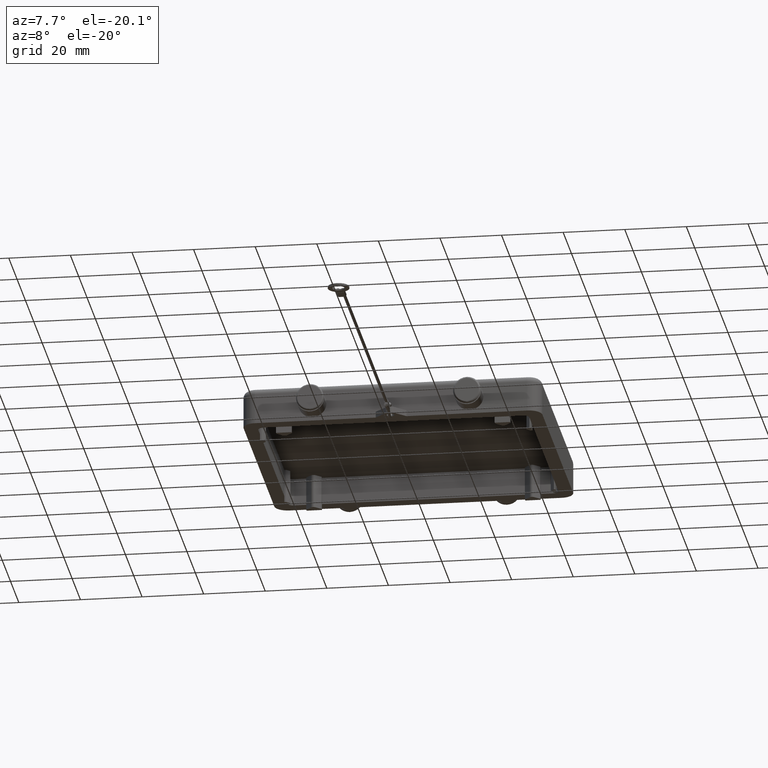
[diagram: clean part render]
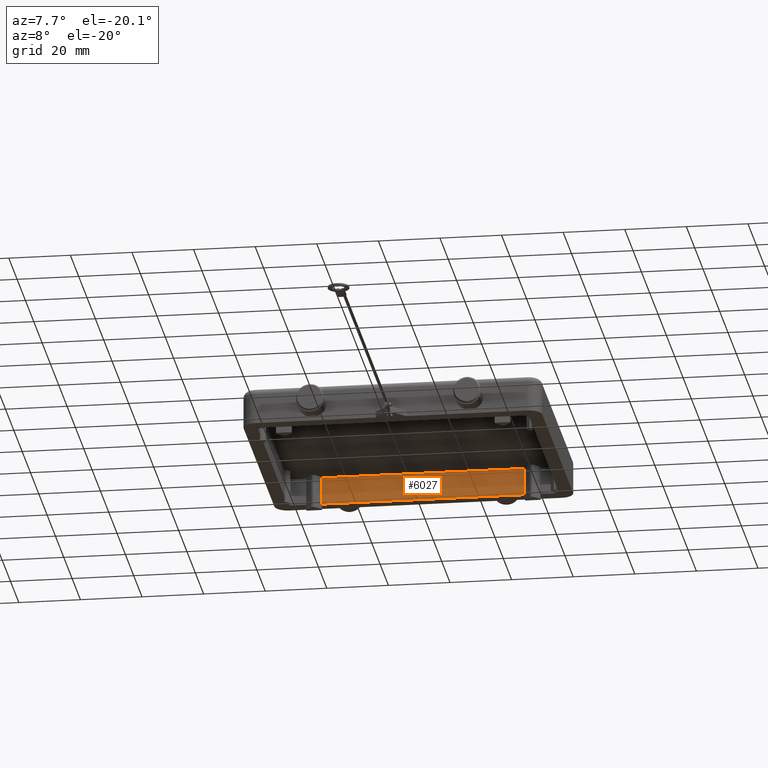
[diagram: same view with one face highlighted and labeled with its STEP entity id]
A machine part, auxiliary view. The second image highlights one B-rep face of the part: STEP entity #6027.
In plain terms, the highlighted planar face has unit normal (0, 1, 0).
Its self-contained STEP definition (entity closure, byte-faithful):
#4664=CARTESIAN_POINT('',(-33.000000000000007,36.750000000000000,9.0));
#4665=VERTEX_POINT('',#4664);
#4672=CARTESIAN_POINT('',(33.000000000000007,36.750000000000000,9.0));
#4673=VERTEX_POINT('',#4672);
#4674=CARTESIAN_POINT('',(-33.000000000000007,36.750000000000000,9.0));
#4675=DIRECTION('',(1.0,0.0,0.0));
#4676=VECTOR('',#4675,66.000000000000014);
#4677=LINE('',#4674,#4676);
#4678=EDGE_CURVE('',#4665,#4673,#4677,.T.);
#5829=CARTESIAN_POINT('',(-33.000000000000007,36.750000000000000,0.0));
#5830=VERTEX_POINT('',#5829);
#5979=CARTESIAN_POINT('',(-33.000000000000007,36.750000000000000,9.0));
#5980=DIRECTION('',(0.0,0.0,-1.0));
#5981=VECTOR('',#5980,9.0);
#5982=LINE('',#5979,#5981);
#5983=EDGE_CURVE('',#4665,#5830,#5982,.T.);
#6004=CARTESIAN_POINT('',(-42.000000000000014,36.749999999999986,0.0));
#6005=DIRECTION('',(0.0,1.0,0.0));
#6006=DIRECTION('',(0.0,0.0,1.0));
#6007=AXIS2_PLACEMENT_3D('',#6004,#6005,#6006);
#6008=PLANE('',#6007);
#6009=ORIENTED_EDGE('',*,*,#5983,.T.);
#6010=CARTESIAN_POINT('',(33.000000000000007,36.750000000000000,0.0));
#6011=VERTEX_POINT('',#6010);
#6012=CARTESIAN_POINT('',(33.000000000000007,36.750000000000000,0.0));
#6013=DIRECTION('',(-1.0,0.0,0.0));
#6014=VECTOR('',#6013,66.000000000000014);
#6015=LINE('',#6012,#6014);
#6016=EDGE_CURVE('',#6011,#5830,#6015,.T.);
#6017=ORIENTED_EDGE('',*,*,#6016,.F.);
#6018=CARTESIAN_POINT('',(33.000000000000007,36.750000000000000,0.0));
#6019=DIRECTION('',(0.0,0.0,1.0));
#6020=VECTOR('',#6019,9.0);
#6021=LINE('',#6018,#6020);
#6022=EDGE_CURVE('',#6011,#4673,#6021,.T.);
#6023=ORIENTED_EDGE('',*,*,#6022,.T.);
#6024=ORIENTED_EDGE('',*,*,#4678,.F.);
#6025=EDGE_LOOP('',(#6009,#6017,#6023,#6024));
#6026=FACE_OUTER_BOUND('',#6025,.T.);
#6027=ADVANCED_FACE('',(#6026),#6008,.F.);